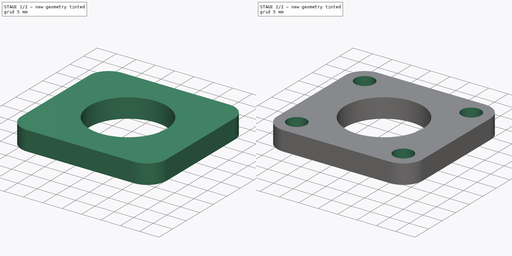
[diagram: build sequence overview — one tinted view per stage of 2, left to right]
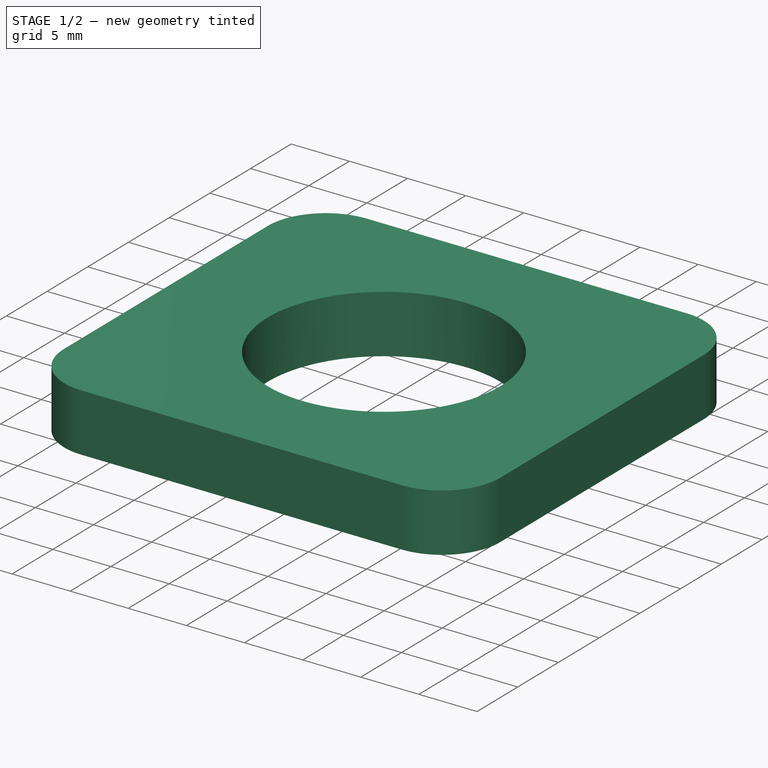
[diagram: stage 1 of 2 — iso view after this stage's code; geometry added in this stage tinted green]
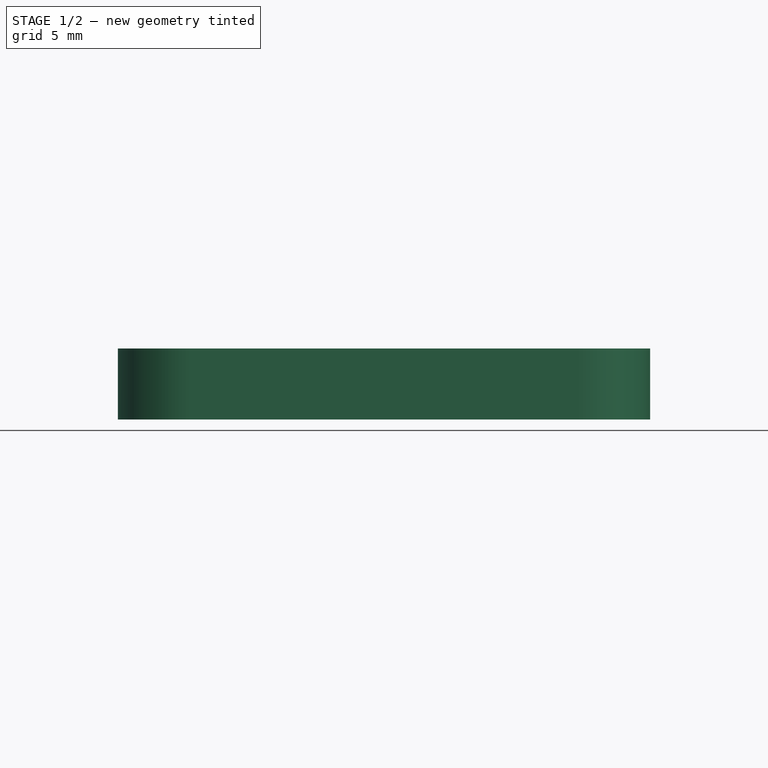
[diagram: stage 1 of 2 — front view after this stage's code; geometry added in this stage tinted green]
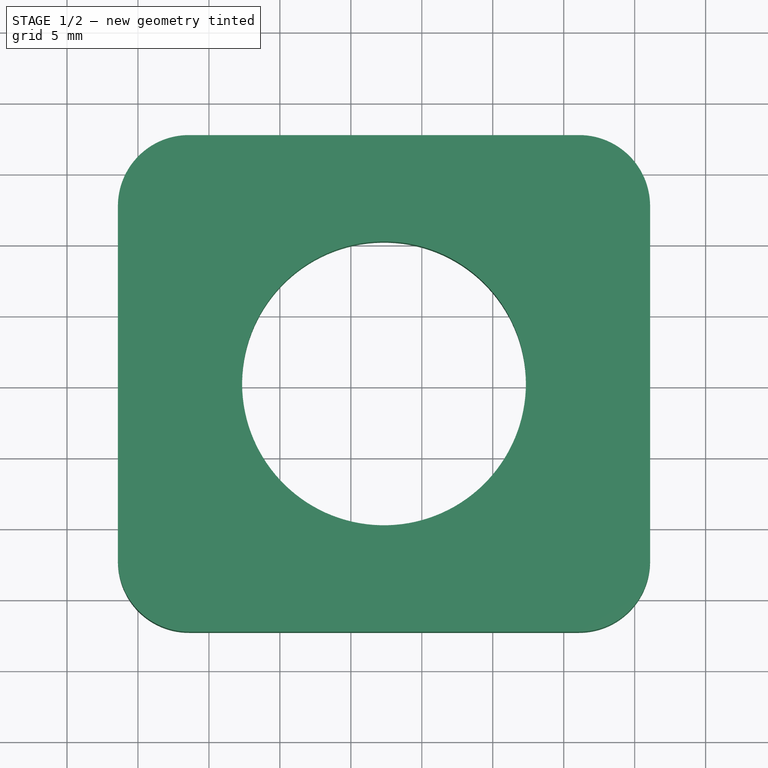
[diagram: stage 1 of 2 — top view after this stage's code; geometry added in this stage tinted green]
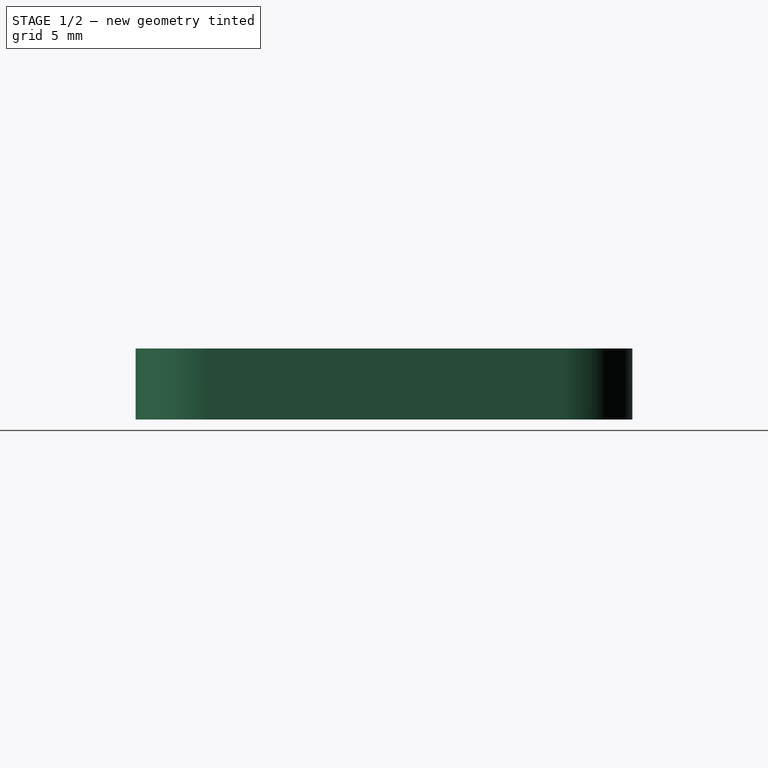
[diagram: stage 1 of 2 — right view after this stage's code; geometry added in this stage tinted green]
FCSTD DOCUMENT  (FreeCAD 0.15R4241 (Git))
Label: motor_mount_inch
License: CC-BY 3.0
LicenseURL: http://creativecommons.org/licenses/by/3.0/
objects: Sketcher::SketchObject×3, PartDesign::Pocket×2, PartDesign::Pad×1
note: 9 computed .brp shape members not serialized (recipe doc carries the construction recipe); baked Part::Feature solids carry a one-line shape summary decoded from their .brp

FEATURE [Sketcher::SketchObject] Sketch
  sketch-geometry (8):
    g0: LineSegment StartX=8.5866 StartY=2.71712 StartZ=0 EndX=36.0866 EndY=2.71712 EndZ=0
    g1: LineSegment StartX=41.0866 StartY=7.71712 StartZ=0 EndX=41.0866 EndY=32.7171 EndZ=0
    g2: LineSegment StartX=36.0866 StartY=37.7171 StartZ=0 EndX=8.5866 EndY=37.7171 EndZ=0
    g3: LineSegment StartX=3.5866 StartY=32.7171 StartZ=0 EndX=3.5866 EndY=7.71712 EndZ=0
    g4: ArcOfCircle CenterX=8.5866 CenterY=32.7171 CenterZ=0 NormalX=0 NormalY=0 NormalZ=1 Radius=5 StartAngle=1.5708 EndAngle=3.14159
    g5: ArcOfCircle CenterX=36.0866 CenterY=32.7171 CenterZ=0 NormalX=0 NormalY=0 NormalZ=1 Radius=5 StartAngle=0 EndAngle=1.5708
    g6: ArcOfCircle CenterX=36.0866 CenterY=7.71712 CenterZ=0 NormalX=0 NormalY=0 NormalZ=1 Radius=5 StartAngle=4.71239 EndAngle=6.28319
    g7: ArcOfCircle CenterX=8.5866 CenterY=7.71712 CenterZ=0 NormalX=0 NormalY=0 NormalZ=1 Radius=5 StartAngle=3.14159 EndAngle=4.71239
  constraints (18):
    c: Horizontal(g0)
    c: Horizontal(g2)
    c: Vertical(g1)
    c: Vertical(g3)
    c: Tangent(g3,g4)
    c: Tangent(g2,g4)
    c: Tangent(g2,g5)
    c: Tangent(g1,g5)
    c: Tangent(g1,g6)
    c: Tangent(g0,g6)
    c: Tangent(g0,g7)
    c: Tangent(g3,g7)
    c: Equal(g7,g6)
    c: Equal(g6,g5)
    c: Equal(g5,g4)
    c: DistanceX(g3,g1) = 37.5
    c: DistanceY(g2,g0) = -35
    c: Radius(g7) = 5
FEATURE [PartDesign::Pad] Pad
  Length = 5
  Length2 = 100
  Sketch = -> Sketch
  Type = 0
FEATURE [Sketcher::SketchObject] Sketch001
  ExternalGeometry = -> [Pad]
  Placement = pos=(0,0,5) rot=(0,0,1;0rad)
  Support = -> Pad [Face10]
  sketch-geometry (5):
    g0: LineSegment [constr] StartX=22.3366 StartY=37.7171 StartZ=0 EndX=22.3366 EndY=20.2171 EndZ=0
    g1: LineSegment [constr] StartX=22.3366 StartY=2.71712 StartZ=0 EndX=22.3366 EndY=20.2171 EndZ=0
    g2: LineSegment [constr] StartX=3.5866 StartY=20.2171 StartZ=0 EndX=22.3366 EndY=20.2171 EndZ=0
    g3: LineSegment [constr] StartX=41.0866 StartY=20.2171 StartZ=0 EndX=22.3366 EndY=20.2171 EndZ=0
    g4: Circle CenterX=22.3366 CenterY=20.2171 CenterZ=0 NormalX=0 NormalY=0 NormalZ=1 Radius=10
  constraints (15):
    c: Vertical(g0)
    c: Vertical(g1)
    c: Horizontal(g2)
    c: Horizontal(g3)
    c: PointOnObject(g3,g-3)
    c: PointOnObject(g2,g-4)
    c: PointOnObject(g0,g-5)
    c: PointOnObject(g1,g-6)
    c: Coincident(g2,g3)
    c: Equal(g2,g3)
    c: Coincident(g0,g1)
    c: Equal(g0,g1)
    c: Coincident(g2,g0)
    c: Coincident(g0,g4)
    c: Radius(g4) = 10
FEATURE [PartDesign::Pocket] Pocket
  Length = 5
  Sketch = -> Sketch001
  Type = 1
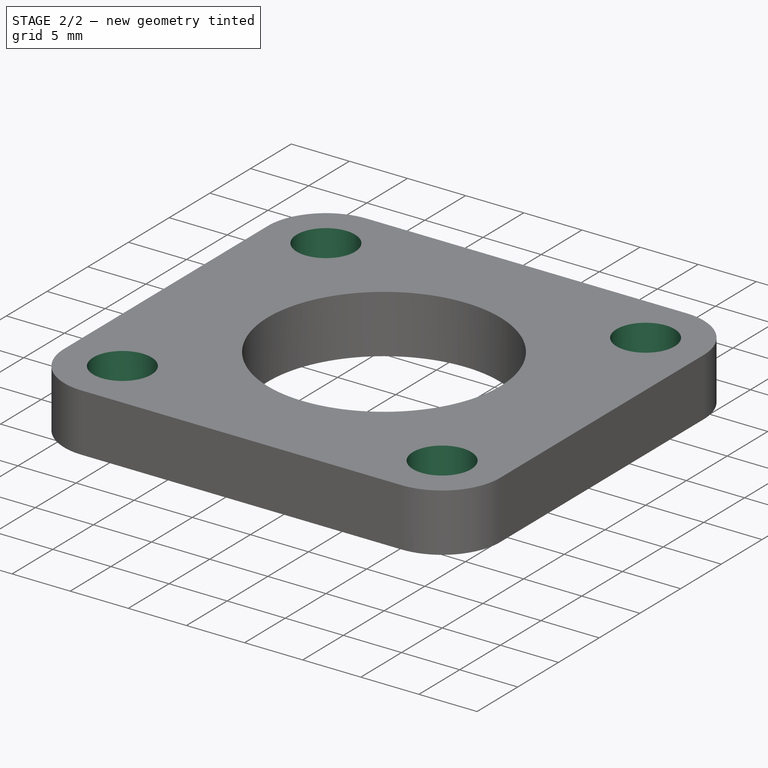
[diagram: stage 2 of 2 — iso view after this stage's code; geometry added in this stage tinted green]
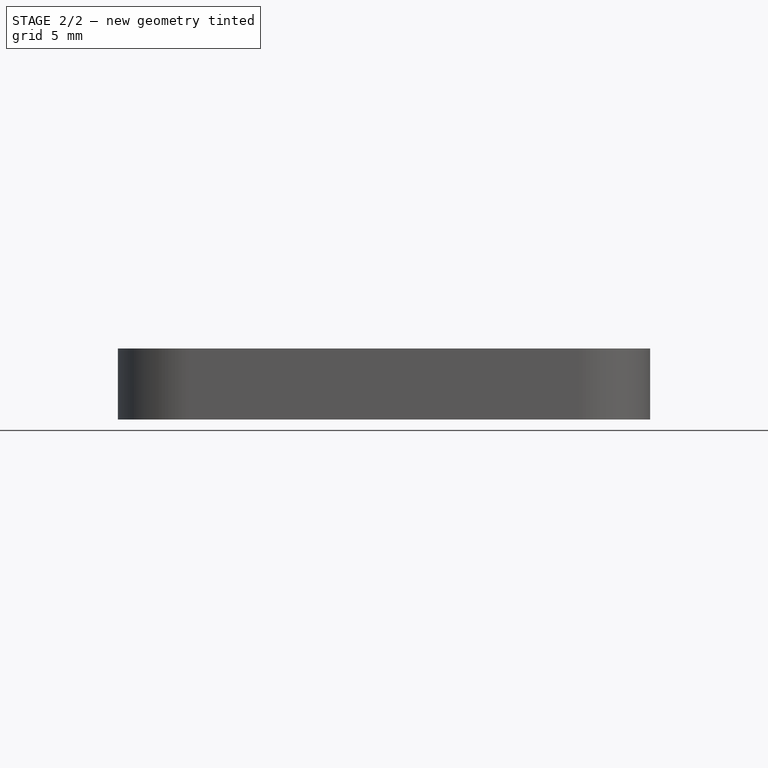
[diagram: stage 2 of 2 — front view after this stage's code; geometry added in this stage tinted green]
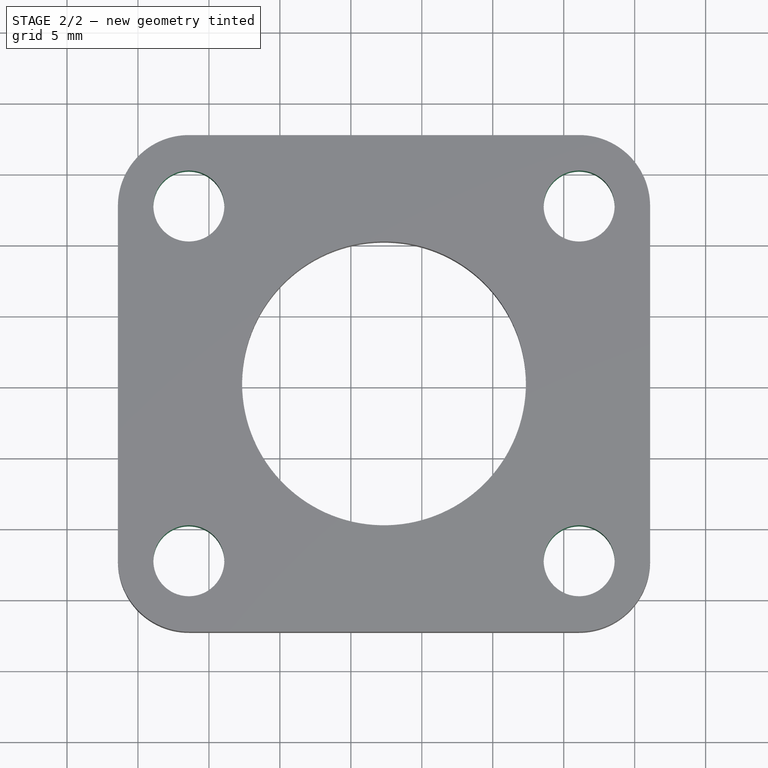
[diagram: stage 2 of 2 — top view after this stage's code; geometry added in this stage tinted green]
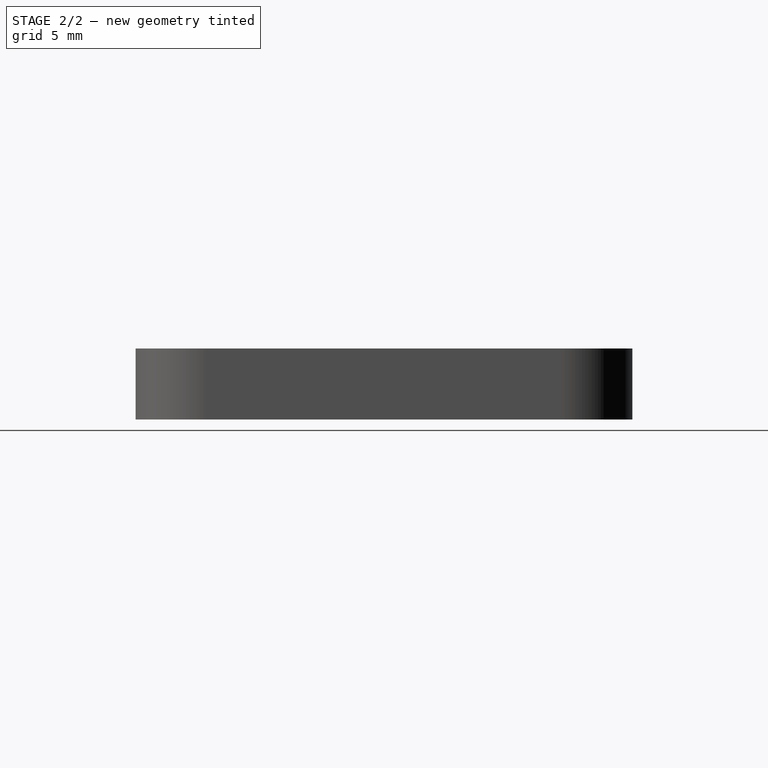
[diagram: stage 2 of 2 — right view after this stage's code; geometry added in this stage tinted green]
FEATURE [Sketcher::SketchObject] Sketch002
  ExternalGeometry = -> [Pocket]
  Placement = pos=(0,0,5) rot=(0,0,1;0rad)
  Support = -> Pocket [Face5]
  sketch-geometry (10):
    g0: LineSegment [constr] StartX=36.0866 StartY=37.7171 StartZ=0 EndX=36.0866 EndY=32.7171 EndZ=0
    g1: LineSegment [constr] StartX=41.0866 StartY=32.7171 StartZ=0 EndX=36.0866 EndY=32.7171 EndZ=0
    g2: Circle CenterX=36.0866 CenterY=32.7171 CenterZ=0 NormalX=0 NormalY=0 NormalZ=1 Radius=2.5
    g3: LineSegment [constr] StartX=22.3366 StartY=37.7171 StartZ=0 EndX=22.3366 EndY=20.2171 EndZ=0
    g4: LineSegment [constr] StartX=22.3366 StartY=2.71712 StartZ=0 EndX=22.3366 EndY=20.2171 EndZ=0
    g5: LineSegment [constr] StartX=3.5866 StartY=20.2171 StartZ=0 EndX=22.3366 EndY=20.2171 EndZ=0
    g6: LineSegment [constr] StartX=41.0866 StartY=20.2171 StartZ=0 EndX=22.3366 EndY=20.2171 EndZ=0
    g7: Circle CenterX=36.0866 CenterY=7.71712 CenterZ=0 NormalX=0 NormalY=0 NormalZ=1 Radius=2.5
    g8: Circle CenterX=8.5866 CenterY=32.7171 CenterZ=0 NormalX=0 NormalY=0 NormalZ=1 Radius=2.5
    g9: Circle CenterX=8.5866 CenterY=7.71712 CenterZ=0 NormalX=0 NormalY=0 NormalZ=1 Radius=2.5
  constraints (27):
    c: Vertical(g0)
    c: Coincident(g-6,g0)
    c: Horizontal(g1)
    c: Coincident(g-3,g1)
    c: Equal(g0,g1)
    c: PointOnObject(g0,g1)
    c: Coincident(g0,g2)
    c: Radius(g2) = 2.5
    c: Vertical(g3)
    c: Vertical(g4)
    c: PointOnObject(g4,g-4)
    c: PointOnObject(g3,g-6)
    c: Equal(g3,g4)
    c: Coincident(g3,g4)
    c: Horizontal(g5)
    c: Horizontal(g6)
    c: PointOnObject(g6,g-3)
    c: PointOnObject(g5,g-5)
    c: Equal(g5,g6)
    c: Coincident(g5,g6)
    c: Coincident(g5,g3)
    c: Symmetric(g0,g8,g3)
    c: Symmetric(g0,g7,g6)
    c: Symmetric(g7,g9,g4)
    c: Equal(g2,g7)
    c: Equal(g7,g8)
    c: Equal(g8,g9)
FEATURE [PartDesign::Pocket] Pocket001
  Length = 5
  Sketch = -> Sketch002
  Type = 1
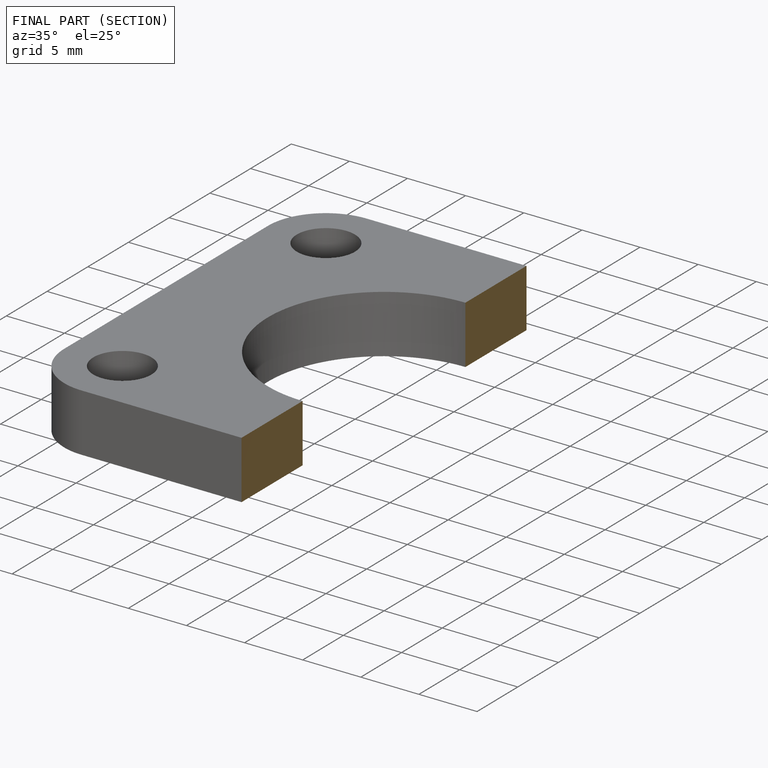
[diagram: finished part — half-section view (interior)]
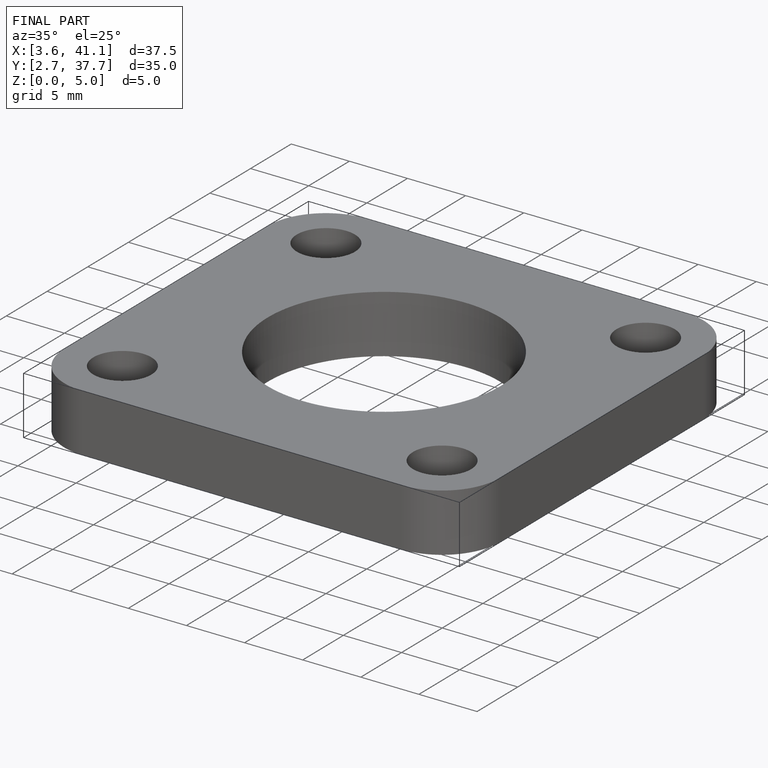
[diagram: finished part — iso view with bounding-box wireframe]
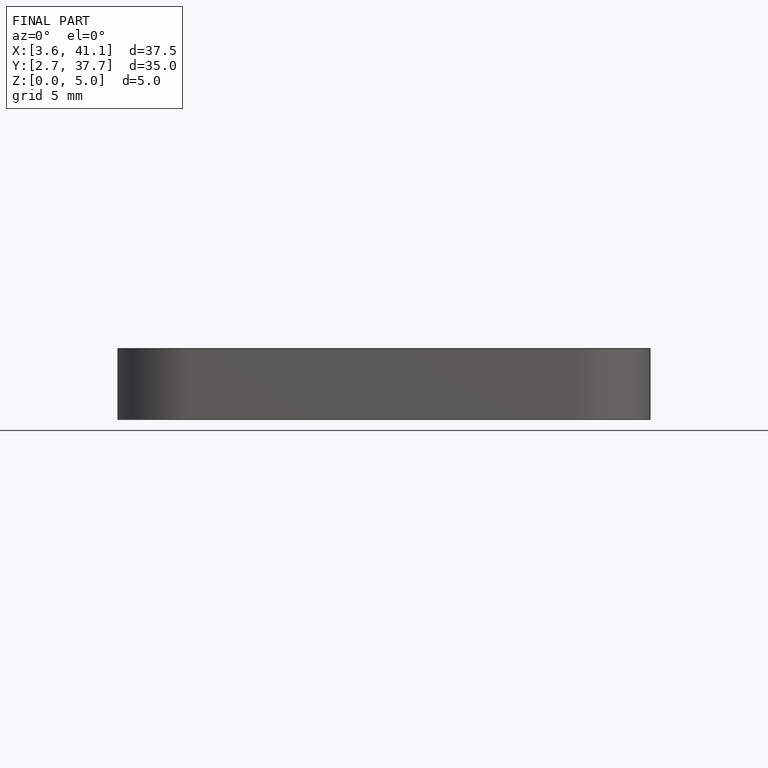
[diagram: finished part — front view with bounding-box wireframe]
